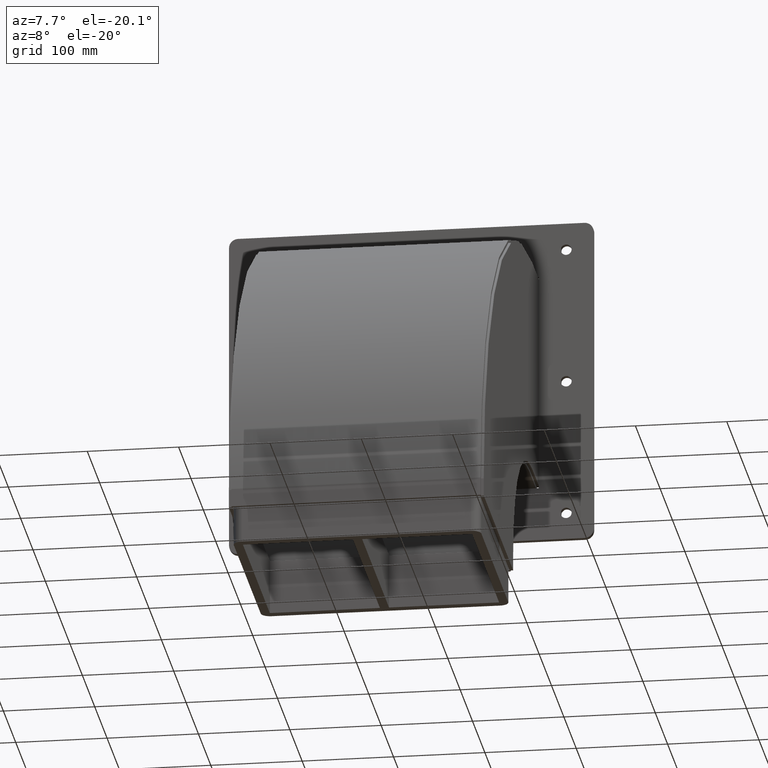
[diagram: clean part render]
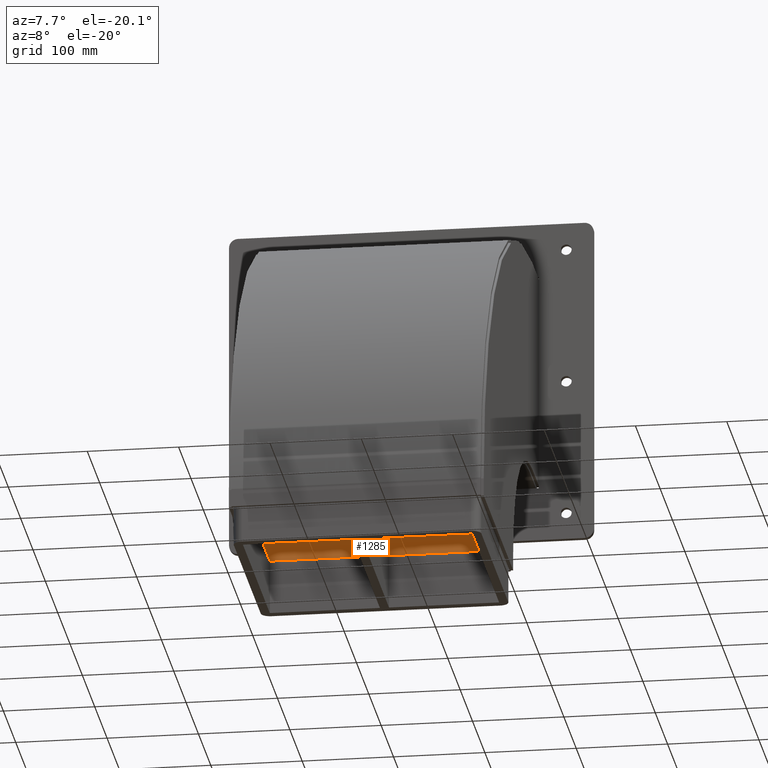
[diagram: same view with one face highlighted and labeled with its STEP entity id]
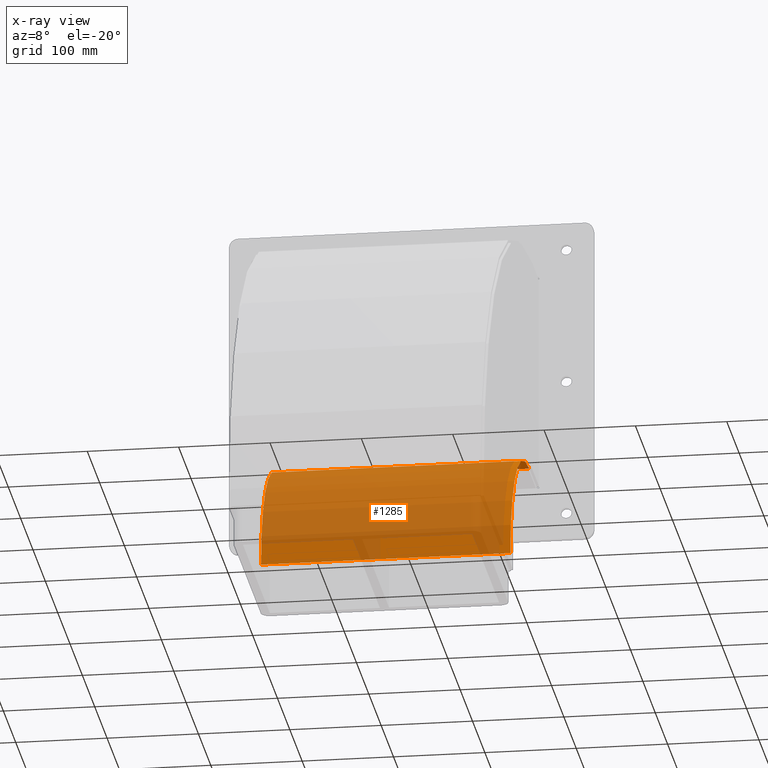
[diagram: x-ray of the same camera — body ghosted, the highlighted face saturated]
A machine part, auxiliary view. The second image highlights one B-rep face of the part: STEP entity #1285.
The next image is the same camera in x-ray: the body ghosted, the highlighted face saturated — about 79% of this face is hidden behind the body in this view.
In plain terms, the highlighted cylindrical surface (partial cylindrical patch) has radius 153 mm, axis along (-1, -0, 0).
Its self-contained STEP definition (entity closure, byte-faithful):
#1039=CARTESIAN_POINT('',(-141.500000000000000,92.494192620065860,109.632631859297360));
#1040=VERTEX_POINT('',#1039);
#1057=CARTESIAN_POINT('',(131.500000000000000,92.494192620065860,109.632631859297360));
#1058=VERTEX_POINT('',#1057);
#1065=CARTESIAN_POINT('',(131.500000000000000,92.494192620065860,109.632631859297360));
#1066=DIRECTION('',(-1.0,0.0,0.0));
#1067=VECTOR('',#1066,273.0);
#1068=LINE('',#1065,#1067);
#1069=EDGE_CURVE('',#1058,#1040,#1068,.T.);
#1236=CARTESIAN_POINT('',(-141.500000000000000,-60.505807379927546,-43.367368140702638));
#1237=VERTEX_POINT('',#1236);
#1244=CARTESIAN_POINT('',(131.500000000000000,-60.505807379927546,-43.367368140702638));
#1245=VERTEX_POINT('',#1244);
#1246=CARTESIAN_POINT('',(131.500000000000000,-60.505807379927546,-43.367368140702638));
#1247=DIRECTION('',(-1.0,0.0,0.0));
#1248=VECTOR('',#1247,273.0);
#1249=LINE('',#1246,#1248);
#1250=EDGE_CURVE('',#1245,#1237,#1249,.T.);
#1262=CARTESIAN_POINT('',(131.500000000000000,-60.505807379934105,109.632631859297360));
#1263=DIRECTION('',(-1.0,0.0,0.0));
#1264=DIRECTION('',(0.0,0.0,1.0));
#1265=AXIS2_PLACEMENT_3D('',#1262,#1263,#1264);
#1266=CYLINDRICAL_SURFACE('',#1265,153.0);
#1267=CARTESIAN_POINT('',(-141.500000000000000,-60.505807379934105,109.632631859297360));
#1268=DIRECTION('',(1.0,0.0,0.0));
#1269=DIRECTION('',(0.0,0.0,1.0));
#1270=AXIS2_PLACEMENT_3D('',#1267,#1268,#1269);
#1271=CIRCLE('',#1270,153.0);
#1272=EDGE_CURVE('',#1237,#1040,#1271,.T.);
#1273=ORIENTED_EDGE('',*,*,#1272,.T.);
#1274=ORIENTED_EDGE('',*,*,#1069,.F.);
#1275=CARTESIAN_POINT('',(131.500000000000000,-60.505807379934105,109.632631859297360));
#1276=DIRECTION('',(1.0,0.0,0.0));
#1277=DIRECTION('',(0.0,0.0,1.0));
#1278=AXIS2_PLACEMENT_3D('',#1275,#1276,#1277);
#1279=CIRCLE('',#1278,153.0);
#1280=EDGE_CURVE('',#1245,#1058,#1279,.T.);
#1281=ORIENTED_EDGE('',*,*,#1280,.F.);
#1282=ORIENTED_EDGE('',*,*,#1250,.T.);
#1283=EDGE_LOOP('',(#1273,#1274,#1281,#1282));
#1284=FACE_OUTER_BOUND('',#1283,.T.);
#1285=ADVANCED_FACE('',(#1284),#1266,.T.);